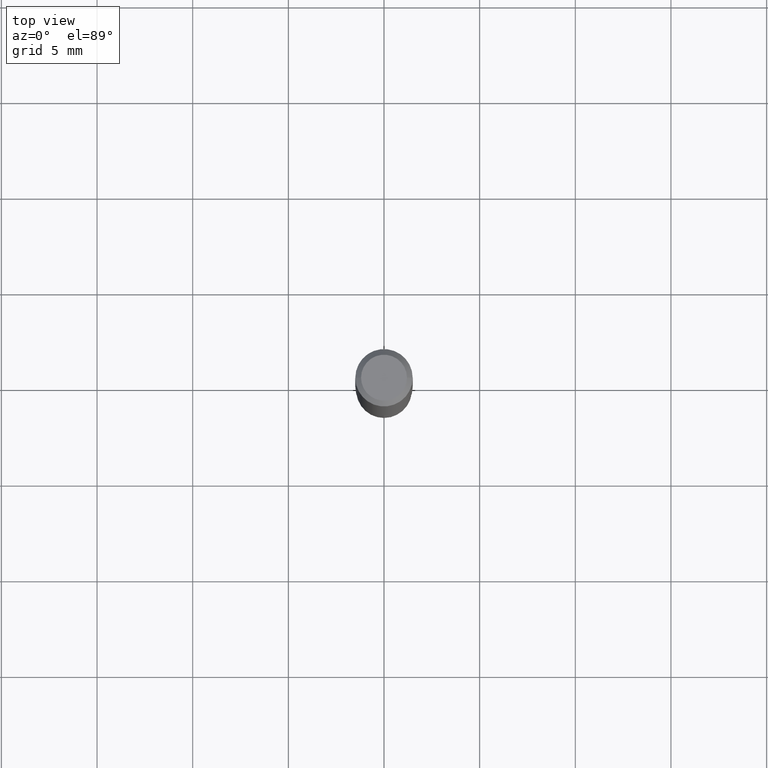
[diagram: clean part render]
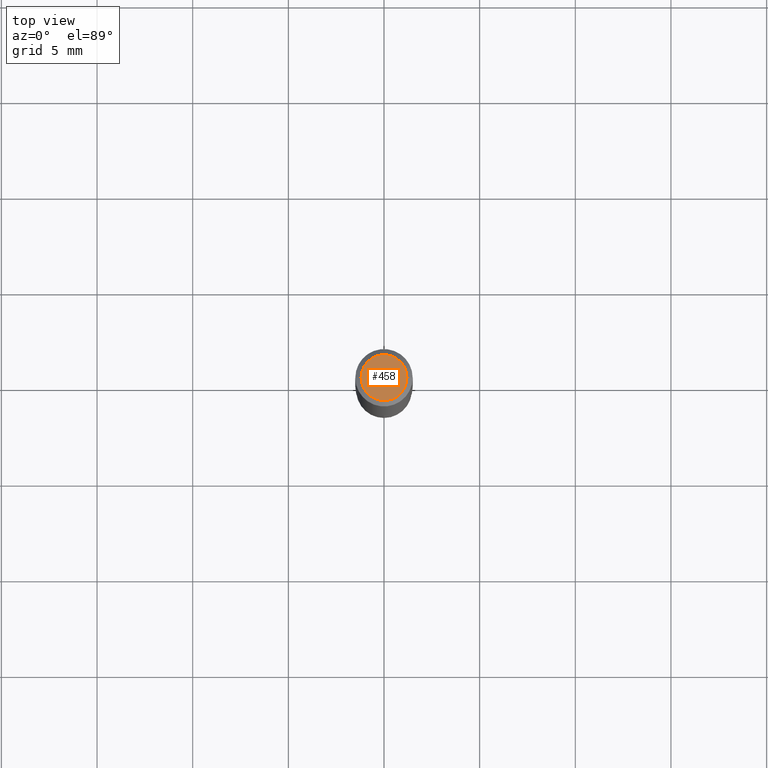
[diagram: same view with one face highlighted and labeled with its STEP entity id]
A machine part, top view. The second image highlights one B-rep face of the part: STEP entity #458.
In plain terms, the highlighted planar face has unit normal (0, -0, -1).
Its self-contained STEP definition (entity closure, byte-faithful):
#35 = FACE_OUTER_BOUND ( 'NONE', #241, .T. ) ;
#37 = DIRECTION ( 'NONE',  ( -2.445468806185136597E-29, 3.491481338843145583E-15, 1.000000000000000000 ) ) ;
#77 = VERTEX_POINT ( 'NONE', #157 ) ;
#82 = PLANE ( 'NONE',  #379 ) ;
#109 = CARTESIAN_POINT ( 'NONE',  ( 8.265746106709734507E-48, -1.180129479067563789E-33, -3.380025165646692144E-19 ) ) ;
#113 = DIRECTION ( 'NONE',  ( -1.000000000000000000, 6.982962677686265922E-15, -4.876176775795935793E-29 ) ) ;
#157 = CARTESIAN_POINT ( 'NONE',  ( -0.04724000000000000421, 3.504923541997677355E-16, -3.380025165670481712E-19 ) ) ;
#158 = ORIENTED_EDGE ( 'NONE', *, *, #191, .T. ) ;
#159 = CARTESIAN_POINT ( 'NONE',  ( 4.132873053354867254E-48, -5.900647395337818946E-34, -1.690012582823346072E-19 ) ) ;
#173 = CARTESIAN_POINT ( 'NONE',  ( 0.04724000000000000421, -3.852183633974369345E-16, -3.380025165621689721E-19 ) ) ;
#191 = EDGE_CURVE ( 'NONE', #77, #390, #298, .T. ) ;
#241 = EDGE_LOOP ( 'NONE', ( #158, #446 ) ) ;
#298 = CIRCLE ( 'NONE', #436, 0.04724000000000000421 ) ;
#315 = DIRECTION ( 'NONE',  ( 2.438088387897960049E-29, -3.491481338843145188E-15, -1.000000000000000000 ) ) ;
#350 = DIRECTION ( 'NONE',  ( -2.445468806185136597E-29, 3.491481338843145583E-15, 1.000000000000000000 ) ) ;
#379 = AXIS2_PLACEMENT_3D ( 'NONE', #159, #315, #113 ) ;
#382 = CARTESIAN_POINT ( 'NONE',  ( 8.265746106709734507E-48, -1.180129479067563789E-33, -3.380025165646692144E-19 ) ) ;
#390 = VERTEX_POINT ( 'NONE', #173 ) ;
#407 = AXIS2_PLACEMENT_3D ( 'NONE', #382, #37, #426 ) ;
#413 = DIRECTION ( 'NONE',  ( 1.000000000000000000, -6.982962677686266711E-15, 4.876185090822587894E-29 ) ) ;
#426 = DIRECTION ( 'NONE',  ( 1.000000000000000000, -6.982962677686266711E-15, 4.876185090822587894E-29 ) ) ;
#427 = CIRCLE ( 'NONE', #407, 0.04724000000000000421 ) ;
#436 = AXIS2_PLACEMENT_3D ( 'NONE', #109, #350, #413 ) ;
#446 = ORIENTED_EDGE ( 'NONE', *, *, #480, .T. ) ;
#458 = ADVANCED_FACE ( 'NONE', ( #35 ), #82, .F. ) ;
#480 = EDGE_CURVE ( 'NONE', #390, #77, #427, .T. ) ;